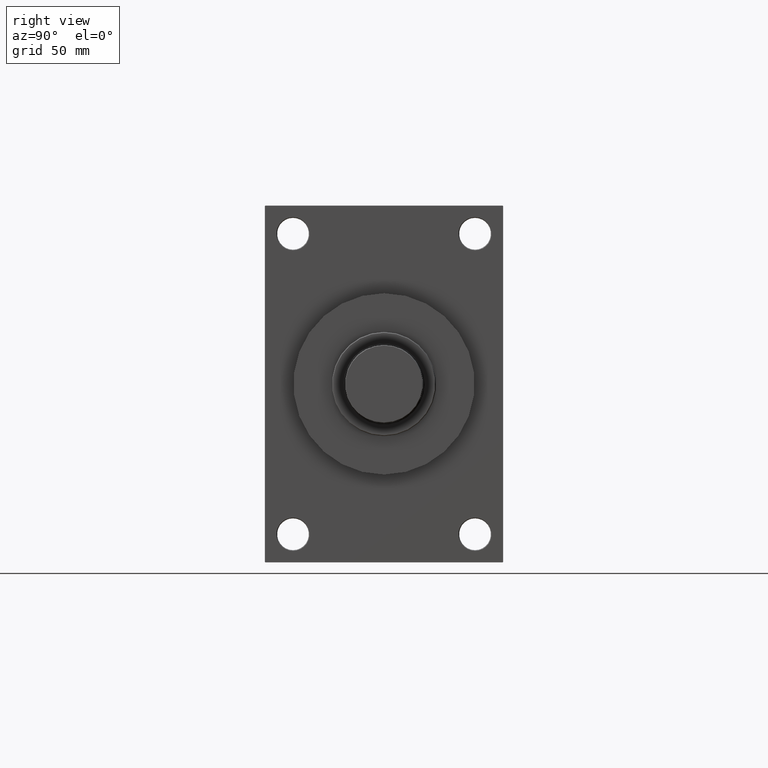
[diagram: clean part render]
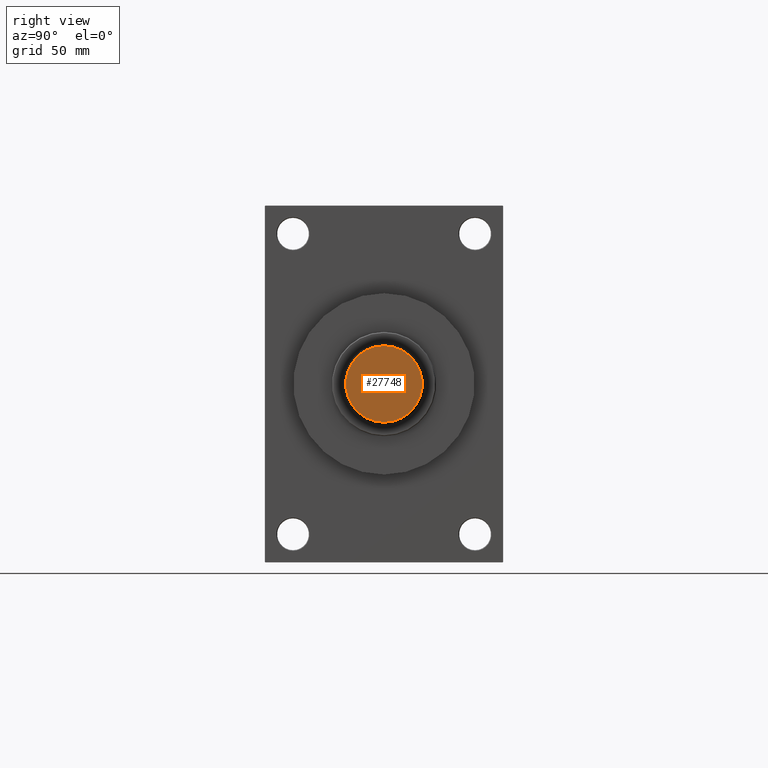
[diagram: same view with one face highlighted and labeled with its STEP entity id]
A machine part, right view. The second image highlights one B-rep face of the part: STEP entity #27748.
In plain terms, the highlighted planar face has unit normal (1, 0, 0).
Its self-contained STEP definition (entity closure, byte-faithful):
#73 = DIRECTION ( 'NONE',  ( 1.000000000000000000, 0.000000000000000000, 0.000000000000000000 ) ) ;
#698 = CIRCLE ( 'NONE', #13160, 26.50000000000000000 ) ;
#3733 = DIRECTION ( 'NONE',  ( 0.000000000000000000, 0.000000000000000000, 1.000000000000000000 ) ) ;
#8272 = VERTEX_POINT ( 'NONE', #19478 ) ;
#10737 = ORIENTED_EDGE ( 'NONE', *, *, #24995, .T. ) ;
#10873 = CIRCLE ( 'NONE', #38084, 26.50000000000000000 ) ;
#11174 = DIRECTION ( 'NONE',  ( 0.000000000000000000, 0.000000000000000000, 1.000000000000000000 ) ) ;
#12434 = PLANE ( 'NONE',  #21080 ) ;
#13160 = AXIS2_PLACEMENT_3D ( 'NONE', #19319, #3733, #73 ) ;
#15304 = CARTESIAN_POINT ( 'NONE',  ( 0.000000000000000000, 0.000000000000000000, 0.000000000000000000 ) ) ;
#16093 = CARTESIAN_POINT ( 'NONE',  ( 0.000000000000000000, 0.000000000000000000, 0.000000000000000000 ) ) ;
#16810 = EDGE_CURVE ( 'NONE', #8272, #33204, #698, .T. ) ;
#19319 = CARTESIAN_POINT ( 'NONE',  ( 0.000000000000000000, 0.000000000000000000, 0.000000000000000000 ) ) ;
#19478 = CARTESIAN_POINT ( 'NONE',  ( -26.50000000000000000, 3.275930187719169552E-15, 0.000000000000000000 ) ) ;
#20019 = ORIENTED_EDGE ( 'NONE', *, *, #16810, .T. ) ;
#20671 = EDGE_LOOP ( 'NONE', ( #10737, #20019 ) ) ;
#21080 = AXIS2_PLACEMENT_3D ( 'NONE', #16093, #38000, #38722 ) ;
#22376 = DIRECTION ( 'NONE',  ( 1.000000000000000000, 0.000000000000000000, 0.000000000000000000 ) ) ;
#23161 = FACE_OUTER_BOUND ( 'NONE', #20671, .T. ) ;
#24995 = EDGE_CURVE ( 'NONE', #33204, #8272, #10873, .T. ) ;
#26997 = CARTESIAN_POINT ( 'NONE',  ( 26.50000000000000000, 0.000000000000000000, 0.000000000000000000 ) ) ;
#27748 = ADVANCED_FACE ( 'NONE', ( #23161 ), #12434, .T. ) ;
#33204 = VERTEX_POINT ( 'NONE', #26997 ) ;
#38000 = DIRECTION ( 'NONE',  ( 0.000000000000000000, 0.000000000000000000, 1.000000000000000000 ) ) ;
#38084 = AXIS2_PLACEMENT_3D ( 'NONE', #15304, #11174, #22376 ) ;
#38722 = DIRECTION ( 'NONE',  ( 1.000000000000000000, 0.000000000000000000, -0.000000000000000000 ) ) ;